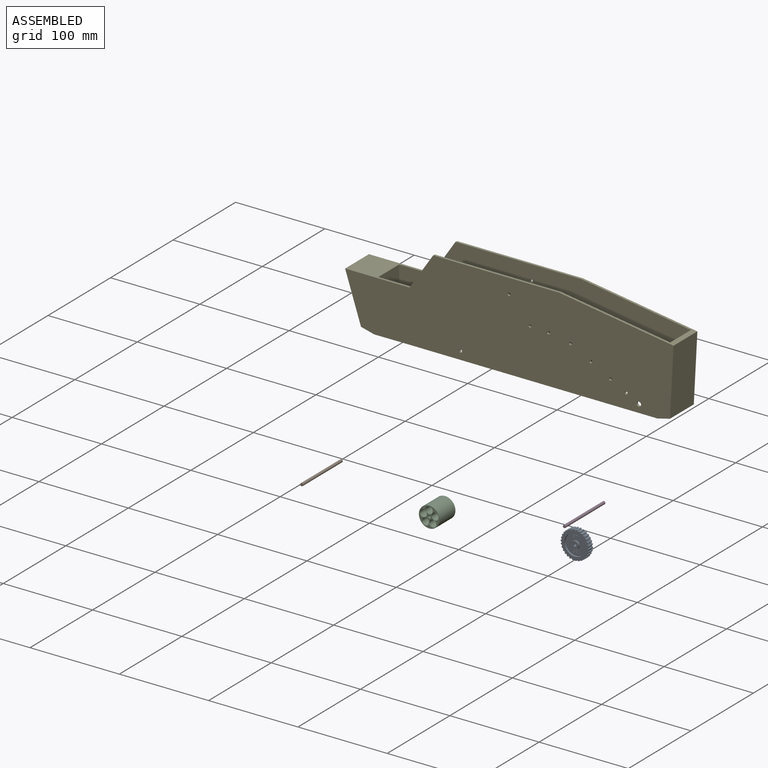
[diagram: assembled view]
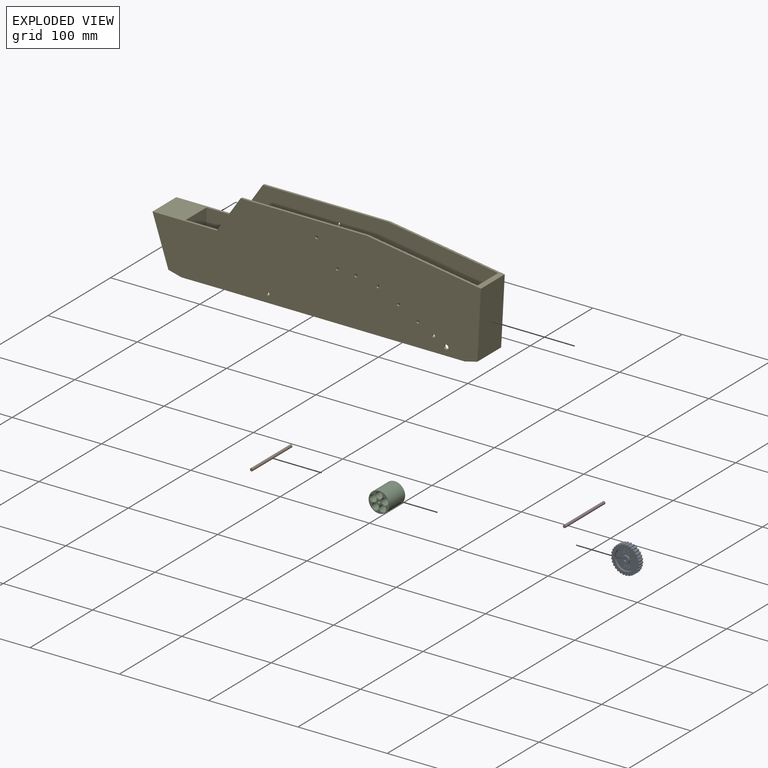
[diagram: exploded view]
GUIDED TOUR — MATED ASSEMBLY (Onshape document 996dfde3c2dcfd95ad4dc604, AutoMate assembly 996dfde3c2dcfd95ad4dc604_26764acc3bf8b6e6fdc7e207_e464e1e1b56f01ff1766349b_default)

This assembly has 5 components, labeled P0..P4 below (a component is one placed occurrence of a part; the same part can appear more than once), held together by 0 mates. A mate is a constraint between two components; its type names the relative motion it leaves free:
Axis/direction vectors are unit vectors and 'through' points are millimeter coordinates, both in the assembly's world frame.

MATES

ASSEMBLY ORDER
  1. P3 — the base component [order verified]
  2. P0 [order verified]
  3. P2 [order verified]
  4. P1 [order verified]
  5. P4 [order verified]
Order-tag legend:
  [order verified] — this step's position reverses a verified removal order: the component was checked to insert without passing through the ones already placed.

Of the 5 components, 3 carry the full construction recipe — the FeatureScript program that regenerates the part's solid from scratch; the rest are supplied as boundary geometry only.
Each toured component is shown spotlighted twice — in the assembled view, then in the exploded view, where a leader line traces a displaced component back to its assembled socket (saturated green if recipe-attached, orange if geometry-only; every other component desaturated gray) — followed by its recipe or geometry summary and the mates that hold it.
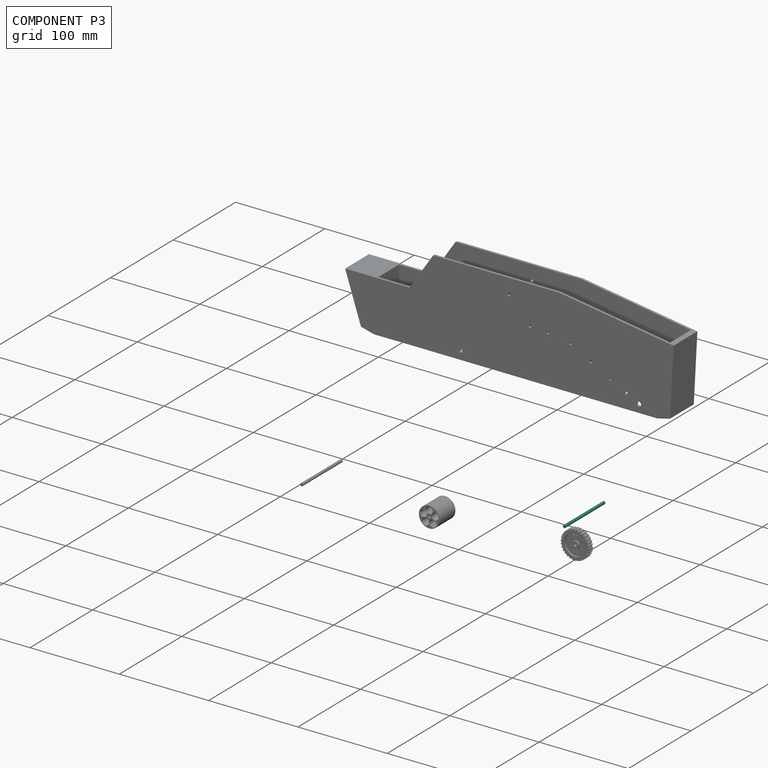
[diagram: component P3 — assembled]
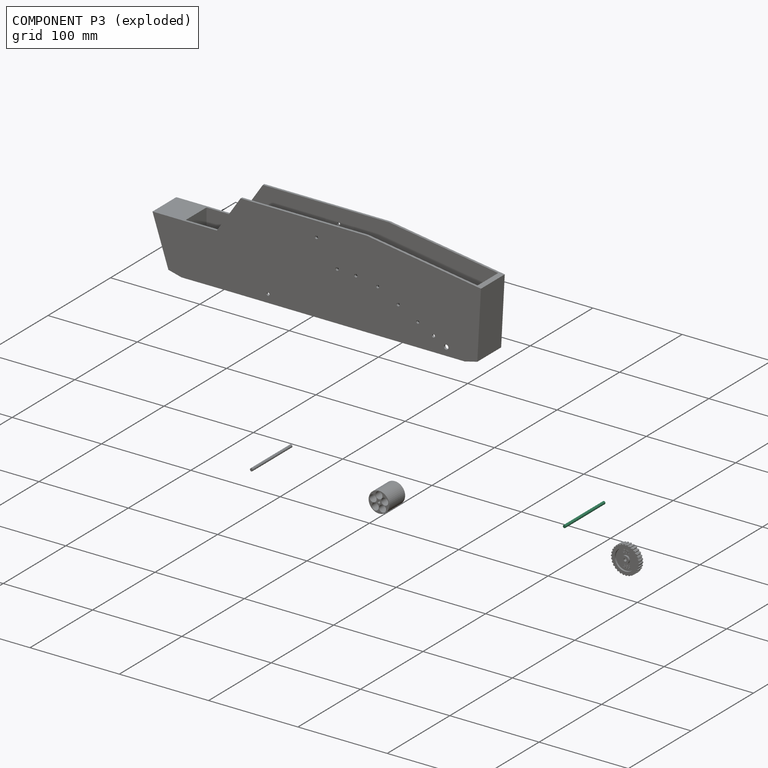
[diagram: component P3 — exploded]
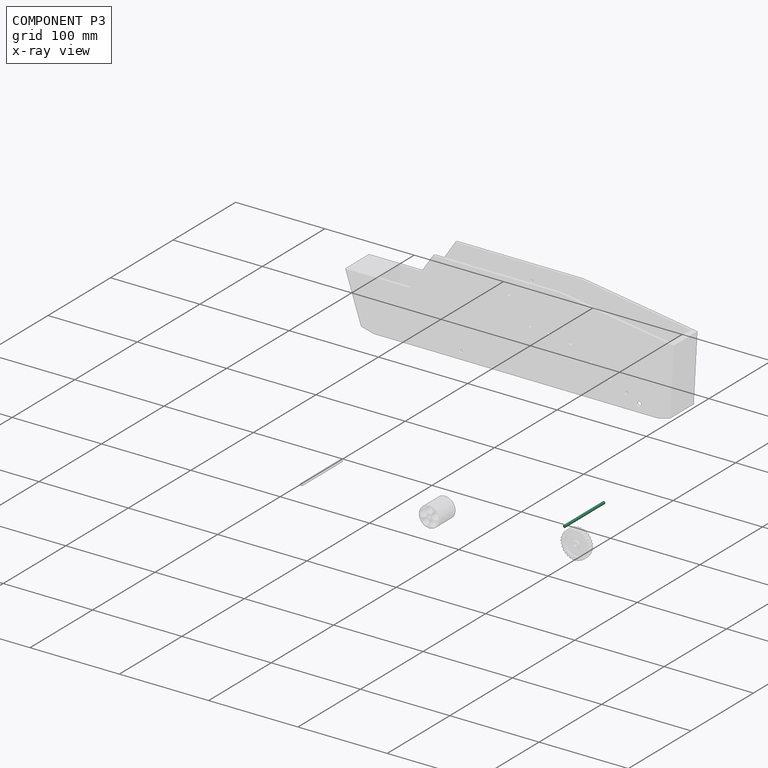
[diagram: component P3 — x-ray view]
COMPONENT P3 — same part as P1 (CADFS 00264422); its construction recipe is shown at P1.
Held by: no mates (free).
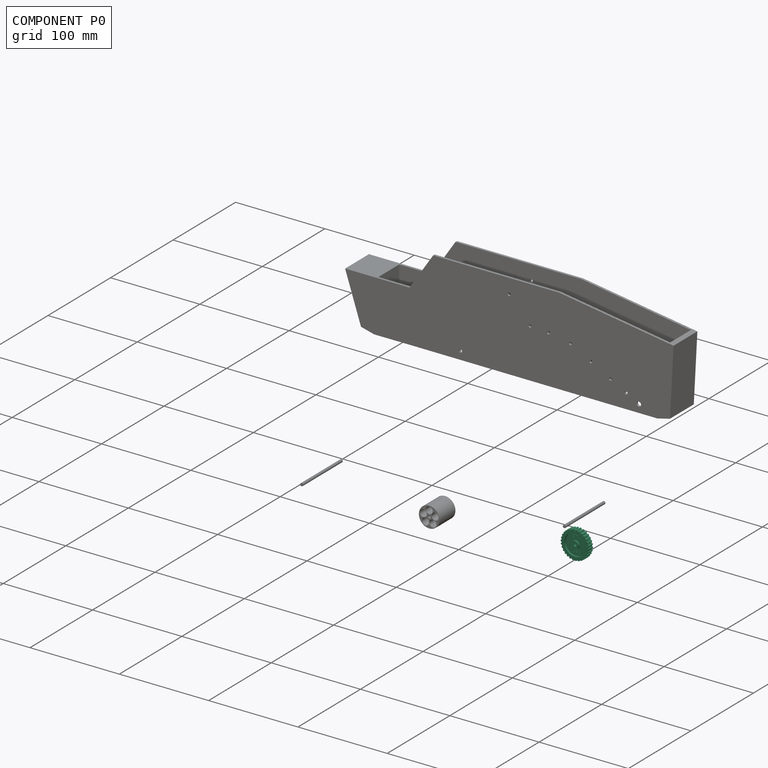
[diagram: component P0 — assembled]
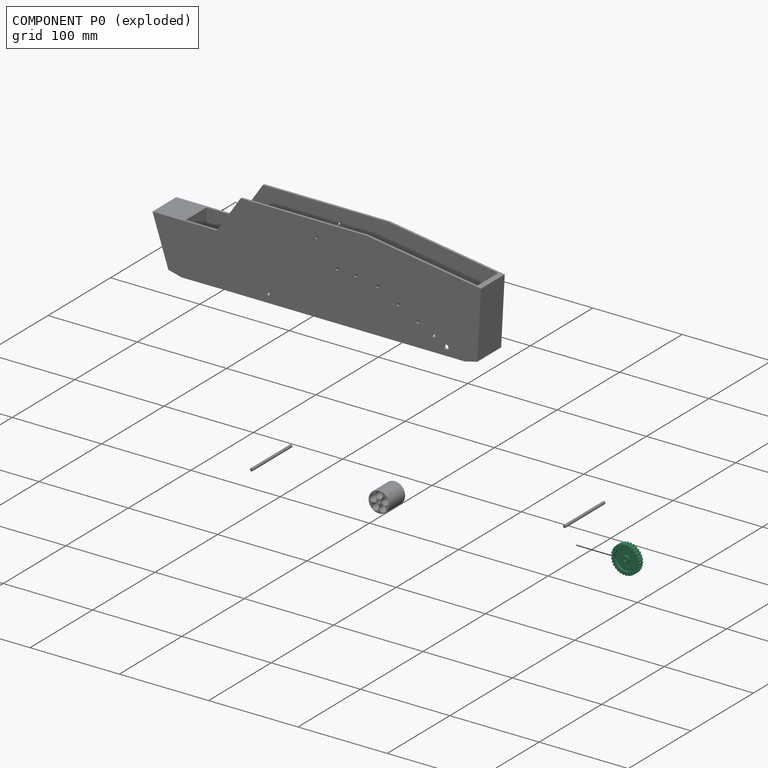
[diagram: component P0 — exploded]
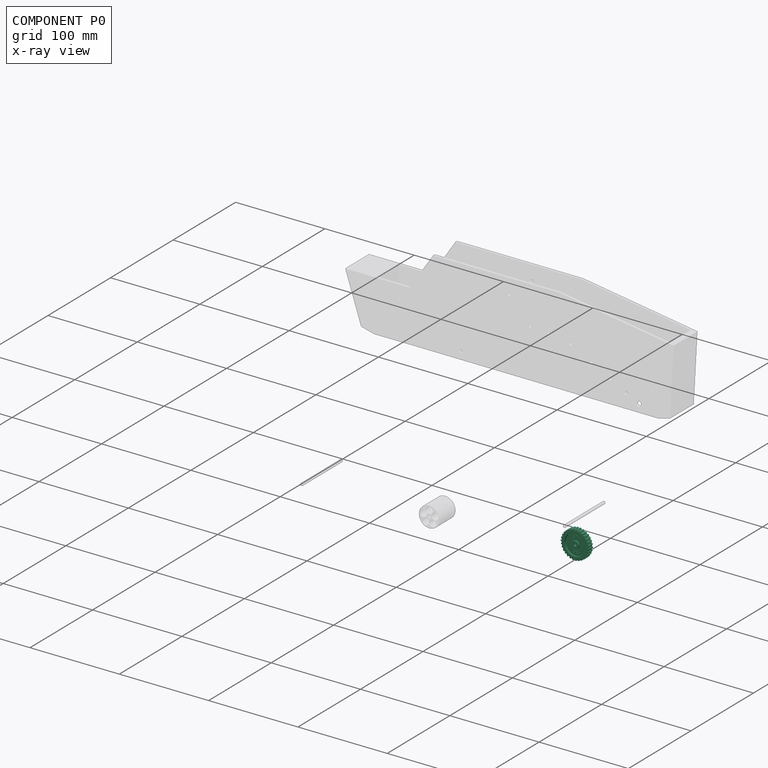
[diagram: component P0 — x-ray view]
COMPONENT P0 — recipe-attached (CADFS 00264423, mesh-verified: the recipe's output STEP matches this component's geometry to below the mesh-comparison resolution (tessellation chordal tolerance ~0.0678 mm)).
Held by: no mates (free).
Construction recipe (FeatureScript — the CAD program that rebuilds this solid; sketch coordinates are in the units given by the * unit suffixes, e.g. mm):

FeatureScript 1511;
import(path : "onshape/std/geometry.fs", version : "1511.0");
import(path : "onshape/std/common.fs", version : "1511.0");
const mm = millimeter;
const VERTEX = EntityType.VERTEX;
const EDGE = EntityType.EDGE;
const FACE = EntityType.FACE;
const BODY = EntityType.BODY;
function v(x, y){return vector(x, y);}
function OD(order){return orderDisambiguation(order);}
function OSD(set){return originalSetDisambiguation(set);}
function TD(topology){return topologyDisambiguation(topology);}
function TDD(query){return trueDependencyDisambiguation(query);}
function sQuery(a, b, c) {return sketchEntityQuery(a, b, c);}

annotation { "Feature Type Name" : "Feature", "Feature Type Description" : "" }
export const myFeature = defineFeature(function(context is Context, id is Id, definition is map)
    precondition{}
    {
        {
            var Q0;
            Q0=qCreatedBy(makeId("Front.planeOp"),FACE);
            var sketch = newSketch(context, id + "F0", { "sketchPlane" : qUnion([Q0])});
            skCircle(sketch, "E0", {"center": v(0, 0) * mm, "radius": 14.92 * mm});
            skCircle(sketch, "E1", {"center": v(0, 0) * mm, "radius": 1.59 * mm});
            skSolve(sketch);
        }
        {
            var Q0;
            Q0=qSketchRegion(id+"F0",true);
            extrude(context, id + "F1", {"entities" : qUnion([Q0]), "depth" : 6.6 * mm});
        }
        {
            var Q0;
            Q0=makeQuery(id+"F1.opExtrude","CAP_FACE",FACE,{"disambiguationData":[OSD([sQuery(id+"F0.wireOp",EDGE,"E0"),sQuery(id+"F0.wireOp",EDGE,"E1")])],"isStart":false});
            var sketch = newSketch(context, id + "F2", { "sketchPlane" : qUnion([Q0])});
            skCircle(sketch, "E2.0", {"center": v(0, 0) * mm, "radius": 11.62 * mm});
            skCircle(sketch, "E3", {"center": v(0, 0) * mm, "radius": 4.13 * mm});
            skSolve(sketch);
        }
        {
            var Q0;
            Q0=qSketchRegion(id+"F2",true);
            extrude(context, id + "F3", {"entities" : qUnion([Q0]), "operationType" : NewBodyOperationType.REMOVE, "oppositeDirection" : true, "depth" : 2.03 * mm});
        }
        {
            var Q0;
            Q0=makeQuery(id+"F1.opExtrude","CAP_FACE",FACE,{"disambiguationData":[OSD([sQuery(id+"F0.wireOp",EDGE,"E0"),sQuery(id+"F0.wireOp",EDGE,"E1")])],"isStart":true});
            var sketch = newSketch(context, id + "F4", { "sketchPlane" : qUnion([Q0])});
            skCircle(sketch, "E4.0", {"center": v(0, 0) * mm, "radius": 11.62 * mm});
            skCircle(sketch, "E5", {"center": v(0, 0) * mm, "radius": 4.13 * mm});
            skSolve(sketch);
        }
        {
            var Q0;
            Q0=qSketchRegion(id+"F4",true);
            extrude(context, id + "F5", {"entities" : qUnion([Q0]), "operationType" : NewBodyOperationType.REMOVE, "oppositeDirection" : true, "depth" : 2.03 * mm});
        }
        {
            var Q0;
            Q0=qCreatedBy(makeId("Front.planeOp"),FACE);
            var sketch = newSketch(context, id + "F6", { "sketchPlane" : qUnion([Q0])});
            skLineSegment(sketch, "E6", {"start": v(0, 0) * mm, "end": v(0, 18.01) * mm, "construction": true});
            skLineSegment(sketch, "E7", {"start": v(0, 0) * mm, "end": v(-3.72, 17.5) * mm, "construction": true});
            skLineSegment(sketch, "E8", {"start": v(0, 0) * mm, "end": v(-1.9, 18.03) * mm, "construction": true});
            skArc(sketch, "E9", {"start": v(-0.45, 15.8) * mm, "mid": v(-1.07, 15.78) * mm, "end": v(-1.68, 15.72) * mm});
            skLineSegment(sketch, "E10", {"start": v(0, 14.93) * mm, "end": v(-0.45, 15.8) * mm});
            skLineSegment(sketch, "E11", {"start": v(-1.68, 15.72) * mm, "end": v(-1.98, 14.7) * mm});
            skLineSegment(sketch, "E12", {"start": v(-1.98, 14.7) * mm, "end": v(0, 14.93) * mm});
            skLineSegment(sketch, "E13.1.0", {"start": v(-4.91, 15.03) * mm, "end": v(-5, 13.97) * mm});
            skArc(sketch, "E13.1.1", {"start": v(-3.73, 15.37) * mm, "mid": v(-4.32, 15.2) * mm, "end": v(-4.91, 15.03) * mm});
            skLineSegment(sketch, "E13.1.2", {"start": v(-3.1, 14.6) * mm, "end": v(-3.73, 15.37) * mm});
            skLineSegment(sketch, "E13.1.3", {"start": v(-5, 13.97) * mm, "end": v(-3.1, 14.6) * mm});
            skLineSegment(sketch, "E13.2.0", {"start": v(-7.93, 13.68) * mm, "end": v(-7.8, 12.62) * mm});
            skArc(sketch, "E13.2.1", {"start": v(-6.84, 14.25) * mm, "mid": v(-7.4, 13.98) * mm, "end": v(-7.93, 13.68) * mm});
            skLineSegment(sketch, "E13.2.2", {"start": v(-6.07, 13.64) * mm, "end": v(-6.84, 14.25) * mm});
            skLineSegment(sketch, "E13.2.3", {"start": v(-7.8, 12.62) * mm, "end": v(-6.07, 13.64) * mm});
            skLineSegment(sketch, "E13.3.0", {"start": v(-10.6, 11.73) * mm, "end": v(-10.25, 10.73) * mm});
            skArc(sketch, "E13.3.1", {"start": v(-9.66, 12.52) * mm, "mid": v(-10.14, 12.14) * mm, "end": v(-10.6, 11.73) * mm});
            skLineSegment(sketch, "E13.3.2", {"start": v(-8.77, 12.08) * mm, "end": v(-9.66, 12.52) * mm});
            skLineSegment(sketch, "E13.3.3", {"start": v(-10.25, 10.73) * mm, "end": v(-8.77, 12.08) * mm});
            skLineSegment(sketch, "E13.4.0", {"start": v(-12.8, 9.27) * mm, "end": v(-12.25, 8.36) * mm});
            skArc(sketch, "E13.4.1", {"start": v(-12.05, 10.24) * mm, "mid": v(-12.44, 9.76) * mm, "end": v(-12.8, 9.27) * mm});
            skLineSegment(sketch, "E13.4.2", {"start": v(-11.1, 9.99) * mm, "end": v(-12.05, 10.24) * mm});
            skLineSegment(sketch, "E13.4.3", {"start": v(-12.25, 8.36) * mm, "end": v(-11.1, 9.99) * mm});
            skLineSegment(sketch, "E13.5.0", {"start": v(-14.45, 6.4) * mm, "end": v(-13.72, 5.63) * mm});
            skArc(sketch, "E13.5.1", {"start": v(-13.91, 7.5) * mm, "mid": v(-14.2, 6.96) * mm, "end": v(-14.45, 6.4) * mm});
            skLineSegment(sketch, "E13.5.2", {"start": v(-12.93, 7.46) * mm, "end": v(-13.91, 7.5) * mm});
            skLineSegment(sketch, "E13.5.3", {"start": v(-13.72, 5.63) * mm, "end": v(-12.93, 7.46) * mm});
            skLineSegment(sketch, "E13.6.0", {"start": v(-15.47, 3.26) * mm, "end": v(-14.6, 2.65) * mm});
            skArc(sketch, "E13.6.1", {"start": v(-15.17, 4.45) * mm, "mid": v(-15.33, 3.86) * mm, "end": v(-15.47, 3.26) * mm});
            skLineSegment(sketch, "E13.6.2", {"start": v(-14.2, 4.61) * mm, "end": v(-15.17, 4.45) * mm});
            skLineSegment(sketch, "E13.6.3", {"start": v(-14.6, 2.65) * mm, "end": v(-14.2, 4.61) * mm});
            skLineSegment(sketch, "E13.7.0", {"start": v(-15.81, -0.03) * mm, "end": v(-14.83, -0.44) * mm});
            skArc(sketch, "E13.7.1", {"start": v(-15.77, 1.2) * mm, "mid": v(-15.8, 0.59) * mm, "end": v(-15.81, -0.03) * mm});
            skLineSegment(sketch, "E13.7.2", {"start": v(-14.84, 1.56) * mm, "end": v(-15.77, 1.2) * mm});
            skLineSegment(sketch, "E13.7.3", {"start": v(-14.83, -0.44) * mm, "end": v(-14.84, 1.56) * mm});
            skLineSegment(sketch, "E13.8.0", {"start": v(-15.46, -3.31) * mm, "end": v(-14.41, -3.51) * mm});
            skArc(sketch, "E13.8.1", {"start": v(-15.67, -2.1) * mm, "mid": v(-15.58, -2.7) * mm, "end": v(-15.46, -3.31) * mm});
            skLineSegment(sketch, "E13.8.2", {"start": v(-14.84, -1.56) * mm, "end": v(-15.67, -2.1) * mm});
            skLineSegment(sketch, "E13.8.3", {"start": v(-14.41, -3.51) * mm, "end": v(-14.84, -1.56) * mm});
            skLineSegment(sketch, "E13.9.0", {"start": v(-14.43, -6.45) * mm, "end": v(-13.37, -6.43) * mm});
            skArc(sketch, "E13.9.1", {"start": v(-14.9, -5.32) * mm, "mid": v(-14.67, -5.89) * mm, "end": v(-14.43, -6.45) * mm});
            skLineSegment(sketch, "E13.9.2", {"start": v(-14.2, -4.61) * mm, "end": v(-14.9, -5.32) * mm});
            skLineSegment(sketch, "E13.9.3", {"start": v(-13.37, -6.43) * mm, "end": v(-14.2, -4.61) * mm});
            skLineSegment(sketch, "E13.10.0", {"start": v(-12.78, -9.31) * mm, "end": v(-11.74, -9.07) * mm});
            skArc(sketch, "E13.10.1", {"start": v(-13.46, -8.3) * mm, "mid": v(-13.13, -8.81) * mm, "end": v(-12.78, -9.31) * mm});
            skLineSegment(sketch, "E13.10.2", {"start": v(-12.93, -7.46) * mm, "end": v(-13.46, -8.3) * mm});
            skLineSegment(sketch, "E13.10.3", {"start": v(-11.74, -9.07) * mm, "end": v(-12.93, -7.46) * mm});
            skLineSegment(sketch, "E13.11.0", {"start": v(-10.56, -11.77) * mm, "end": v(-9.6, -11.31) * mm});
            skArc(sketch, "E13.11.1", {"start": v(-11.44, -10.91) * mm, "mid": v(-11, -11.35) * mm, "end": v(-10.56, -11.77) * mm});
            skLineSegment(sketch, "E13.11.2", {"start": v(-11.1, -9.99) * mm, "end": v(-11.44, -10.91) * mm});
            skLineSegment(sketch, "E13.11.3", {"start": v(-9.6, -11.31) * mm, "end": v(-11.1, -9.99) * mm});
            skLineSegment(sketch, "E13.12.0", {"start": v(-7.88, -13.7) * mm, "end": v(-7.03, -13.06) * mm});
            skArc(sketch, "E13.12.1", {"start": v(-8.92, -13.05) * mm, "mid": v(-8.4, -13.39) * mm, "end": v(-7.88, -13.7) * mm});
            skLineSegment(sketch, "E13.12.2", {"start": v(-8.77, -12.08) * mm, "end": v(-8.92, -13.05) * mm});
            skLineSegment(sketch, "E13.12.3", {"start": v(-7.03, -13.06) * mm, "end": v(-8.77, -12.08) * mm});
            skLineSegment(sketch, "E13.13.0", {"start": v(-4.86, -15.05) * mm, "end": v(-4.17, -14.24) * mm});
            skArc(sketch, "E13.13.1", {"start": v(-6.01, -14.62) * mm, "mid": v(-5.44, -14.85) * mm, "end": v(-4.86, -15.05) * mm});
            skLineSegment(sketch, "E13.13.2", {"start": v(-6.07, -13.64) * mm, "end": v(-6.01, -14.62) * mm});
            skLineSegment(sketch, "E13.13.3", {"start": v(-4.17, -14.24) * mm, "end": v(-6.07, -13.64) * mm});
            skLineSegment(sketch, "E13.14.0", {"start": v(-1.63, -15.73) * mm, "end": v(-1.11, -14.8) * mm});
            skArc(sketch, "E13.14.1", {"start": v(-2.84, -15.55) * mm, "mid": v(-2.24, -15.65) * mm, "end": v(-1.63, -15.73) * mm});
            skLineSegment(sketch, "E13.14.2", {"start": v(-3.1, -14.6) * mm, "end": v(-2.84, -15.55) * mm});
            skLineSegment(sketch, "E13.14.3", {"start": v(-1.11, -14.8) * mm, "end": v(-3.1, -14.6) * mm});
            skLineSegment(sketch, "E13.15.0", {"start": v(1.68, -15.72) * mm, "end": v(1.98, -14.7) * mm});
            skArc(sketch, "E13.15.1", {"start": v(0.45, -15.8) * mm, "mid": v(1.07, -15.78) * mm, "end": v(1.68, -15.72) * mm});
            skLineSegment(sketch, "E13.15.2", {"start": v(0, -14.93) * mm, "end": v(0.45, -15.8) * mm});
            skLineSegment(sketch, "E13.15.3", {"start": v(1.98, -14.7) * mm, "end": v(0, -14.93) * mm});
            skLineSegment(sketch, "E13.16.0", {"start": v(4.91, -15.03) * mm, "end": v(5, -13.97) * mm});
            skArc(sketch, "E13.16.1", {"start": v(3.73, -15.37) * mm, "mid": v(4.32, -15.2) * mm, "end": v(4.91, -15.03) * mm});
            skLineSegment(sketch, "E13.16.2", {"start": v(3.1, -14.6) * mm, "end": v(3.73, -15.37) * mm});
            skLineSegment(sketch, "E13.16.3", {"start": v(5, -13.97) * mm, "end": v(3.1, -14.6) * mm});
            skLineSegment(sketch, "E13.17.0", {"start": v(7.93, -13.68) * mm, "end": v(7.8, -12.62) * mm});
            skArc(sketch, "E13.17.1", {"start": v(6.84, -14.25) * mm, "mid": v(7.4, -13.98) * mm, "end": v(7.93, -13.68) * mm});
            skLineSegment(sketch, "E13.17.2", {"start": v(6.07, -13.64) * mm, "end": v(6.84, -14.25) * mm});
            skLineSegment(sketch, "E13.17.3", {"start": v(7.8, -12.62) * mm, "end": v(6.07, -13.64) * mm});
            skLineSegment(sketch, "E13.18.0", {"start": v(10.6, -11.73) * mm, "end": v(10.25, -10.73) * mm});
            skArc(sketch, "E13.18.1", {"start": v(9.66, -12.52) * mm, "mid": v(10.14, -12.14) * mm, "end": v(10.6, -11.73) * mm});
            skLineSegment(sketch, "E13.18.2", {"start": v(8.77, -12.08) * mm, "end": v(9.66, -12.52) * mm});
            skLineSegment(sketch, "E13.18.3", {"start": v(10.25, -10.73) * mm, "end": v(8.77, -12.08) * mm});
            skLineSegment(sketch, "E13.19.0", {"start": v(12.8, -9.27) * mm, "end": v(12.25, -8.36) * mm});
            skArc(sketch, "E13.19.1", {"start": v(12.05, -10.24) * mm, "mid": v(12.44, -9.76) * mm, "end": v(12.8, -9.27) * mm});
            skLineSegment(sketch, "E13.19.2", {"start": v(11.1, -9.99) * mm, "end": v(12.05, -10.24) * mm});
            skLineSegment(sketch, "E13.19.3", {"start": v(12.25, -8.36) * mm, "end": v(11.1, -9.99) * mm});
            skLineSegment(sketch, "E13.20.0", {"start": v(14.45, -6.4) * mm, "end": v(13.72, -5.63) * mm});
            skArc(sketch, "E13.20.1", {"start": v(13.91, -7.5) * mm, "mid": v(14.2, -6.96) * mm, "end": v(14.45, -6.4) * mm});
            skLineSegment(sketch, "E13.20.2", {"start": v(12.93, -7.46) * mm, "end": v(13.91, -7.5) * mm});
            skLineSegment(sketch, "E13.20.3", {"start": v(13.72, -5.63) * mm, "end": v(12.93, -7.46) * mm});
            skLineSegment(sketch, "E13.21.0", {"start": v(15.47, -3.26) * mm, "end": v(14.6, -2.65) * mm});
            skArc(sketch, "E13.21.1", {"start": v(15.17, -4.45) * mm, "mid": v(15.33, -3.86) * mm, "end": v(15.47, -3.26) * mm});
            skLineSegment(sketch, "E13.21.2", {"start": v(14.2, -4.61) * mm, "end": v(15.17, -4.45) * mm});
            skLineSegment(sketch, "E13.21.3", {"start": v(14.6, -2.65) * mm, "end": v(14.2, -4.61) * mm});
            skLineSegment(sketch, "E13.22.0", {"start": v(15.81, 0.03) * mm, "end": v(14.83, 0.44) * mm});
            skArc(sketch, "E13.22.1", {"start": v(15.77, -1.2) * mm, "mid": v(15.8, -0.59) * mm, "end": v(15.81, 0.03) * mm});
            skLineSegment(sketch, "E13.22.2", {"start": v(14.84, -1.56) * mm, "end": v(15.77, -1.2) * mm});
            skLineSegment(sketch, "E13.22.3", {"start": v(14.83, 0.44) * mm, "end": v(14.84, -1.56) * mm});
            skLineSegment(sketch, "E13.23.0", {"start": v(15.46, 3.31) * mm, "end": v(14.41, 3.51) * mm});
            skArc(sketch, "E13.23.1", {"start": v(15.67, 2.1) * mm, "mid": v(15.58, 2.7) * mm, "end": v(15.46, 3.31) * mm});
            skLineSegment(sketch, "E13.23.2", {"start": v(14.84, 1.56) * mm, "end": v(15.67, 2.1) * mm});
            skLineSegment(sketch, "E13.23.3", {"start": v(14.41, 3.51) * mm, "end": v(14.84, 1.56) * mm});
            skLineSegment(sketch, "E13.24.0", {"start": v(14.43, 6.45) * mm, "end": v(13.37, 6.43) * mm});
            skArc(sketch, "E13.24.1", {"start": v(14.9, 5.32) * mm, "mid": v(14.67, 5.89) * mm, "end": v(14.43, 6.45) * mm});
            skLineSegment(sketch, "E13.24.2", {"start": v(14.2, 4.61) * mm, "end": v(14.9, 5.32) * mm});
            skLineSegment(sketch, "E13.24.3", {"start": v(13.37, 6.43) * mm, "end": v(14.2, 4.61) * mm});
            skLineSegment(sketch, "E13.25.0", {"start": v(12.78, 9.31) * mm, "end": v(11.74, 9.07) * mm});
            skArc(sketch, "E13.25.1", {"start": v(13.46, 8.3) * mm, "mid": v(13.13, 8.81) * mm, "end": v(12.78, 9.31) * mm});
            skLineSegment(sketch, "E13.25.2", {"start": v(12.93, 7.46) * mm, "end": v(13.46, 8.3) * mm});
            skLineSegment(sketch, "E13.25.3", {"start": v(11.74, 9.07) * mm, "end": v(12.93, 7.46) * mm});
            skLineSegment(sketch, "E13.26.0", {"start": v(10.56, 11.77) * mm, "end": v(9.6, 11.31) * mm});
            skArc(sketch, "E13.26.1", {"start": v(11.44, 10.91) * mm, "mid": v(11, 11.35) * mm, "end": v(10.56, 11.77) * mm});
            skLineSegment(sketch, "E13.26.2", {"start": v(11.1, 9.99) * mm, "end": v(11.44, 10.91) * mm});
            skLineSegment(sketch, "E13.26.3", {"start": v(9.6, 11.31) * mm, "end": v(11.1, 9.99) * mm});
            skLineSegment(sketch, "E13.27.0", {"start": v(7.88, 13.7) * mm, "end": v(7.03, 13.06) * mm});
            skArc(sketch, "E13.27.1", {"start": v(8.92, 13.05) * mm, "mid": v(8.4, 13.39) * mm, "end": v(7.88, 13.7) * mm});
            skLineSegment(sketch, "E13.27.2", {"start": v(8.77, 12.08) * mm, "end": v(8.92, 13.05) * mm});
            skLineSegment(sketch, "E13.27.3", {"start": v(7.03, 13.06) * mm, "end": v(8.77, 12.08) * mm});
            skLineSegment(sketch, "E13.28.0", {"start": v(4.86, 15.05) * mm, "end": v(4.17, 14.24) * mm});
            skArc(sketch, "E13.28.1", {"start": v(6.01, 14.62) * mm, "mid": v(5.44, 14.85) * mm, "end": v(4.86, 15.05) * mm});
            skLineSegment(sketch, "E13.28.2", {"start": v(6.07, 13.64) * mm, "end": v(6.01, 14.62) * mm});
            skLineSegment(sketch, "E13.28.3", {"start": v(4.17, 14.24) * mm, "end": v(6.07, 13.64) * mm});
            skLineSegment(sketch, "E13.29.0", {"start": v(1.63, 15.73) * mm, "end": v(1.11, 14.8) * mm});
            skArc(sketch, "E13.29.1", {"start": v(2.84, 15.55) * mm, "mid": v(2.24, 15.65) * mm, "end": v(1.63, 15.73) * mm});
            skLineSegment(sketch, "E13.29.2", {"start": v(3.1, 14.6) * mm, "end": v(2.84, 15.55) * mm});
            skLineSegment(sketch, "E13.29.3", {"start": v(1.11, 14.8) * mm, "end": v(3.1, 14.6) * mm});
            skSolve(sketch);
        }
        {
            var Q0;
            Q0=qSketchRegion(id+"F6",true);
            var Q1;
            {var subQ0=sQuery(id+"F0.wireOp",EDGE,"E0");Q1=makeQuery(id+"F3.boolean.opBoolean","SPLIT",FACE,{"disambiguationData":[TD([makeQuery(id+"F1.opExtrude","SWEPT_FACE",FACE,{"disambiguationData":[OSD([subQ0])]})])],"derivedFrom":makeQuery(id+"F1.opExtrude","CAP_FACE",FACE,{"disambiguationData":[OSD([subQ0,sQuery(id+"F0.wireOp",EDGE,"E1")])],"isStart":false})});}
            extrude(context, id + "F7", {"entities" : qUnion([Q0]), "operationType" : NewBodyOperationType.ADD, "endBound" : BoundingType.UP_TO_SURFACE, "endBoundEntityFace" : qUnion([Q1]), "depth" : 25.4 * mm});
        }
        {
            var Q0;
            Q0=makeQuery(id+"F3.boolean.opBoolean","COPY",FACE,{"derivedFrom":makeQuery(id+"F3.opExtrude","CAP_FACE",FACE,{"disambiguationData":[OSD([sQuery(id+"F2.wireOp",EDGE,"E2.0"),sQuery(id+"F2.wireOp",EDGE,"E3")])],"isStart":false})});
            var sketch = newSketch(context, id + "F8", { "sketchPlane" : qUnion([Q0])});
            skText(sketch, "E14", { "text": "30t", "fontName": "OpenSans-Regular.ttf"});
            skText(sketch, "E15", { "text": ".586", "fontName": "OpenSans-Regular.ttf"});
            const initialGuessF8  = {"E14": [-0.00347, 0.00618, 1, 0, 0.00331], "E15": [-0.0039, -0.00869, 1, 0, 0.003]};
            skSetInitialGuess(sketch, initialGuessF8);
            skSolve(sketch);
        }
        {
            var Q0;
            Q0=qSketchRegion(id+"F8",true);
            extrude(context, id + "F9", {"entities" : qUnion([Q0]), "operationType" : NewBodyOperationType.ADD, "depth" : 0.5 * mm});
        }
    });
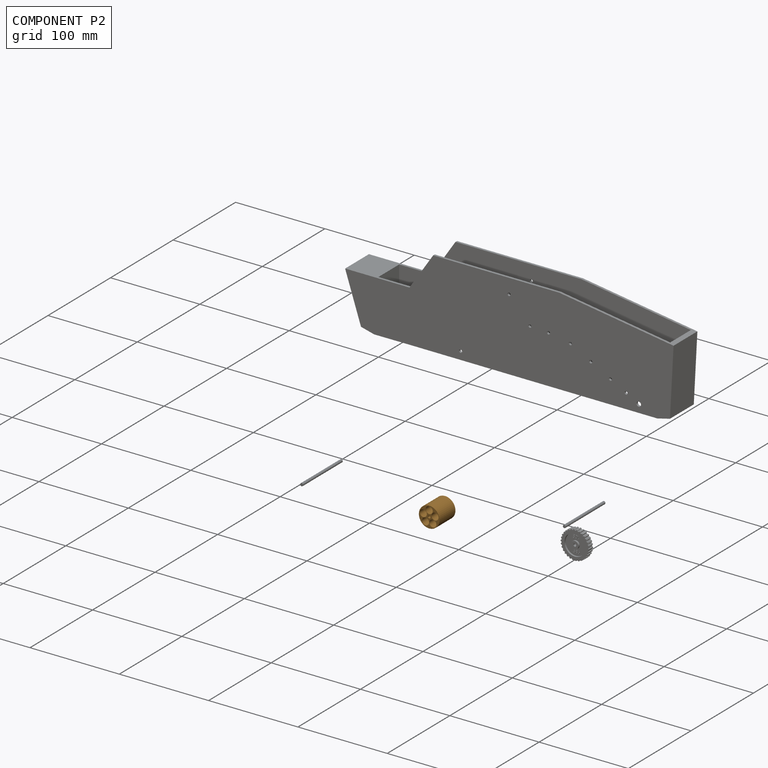
[diagram: component P2 — assembled]
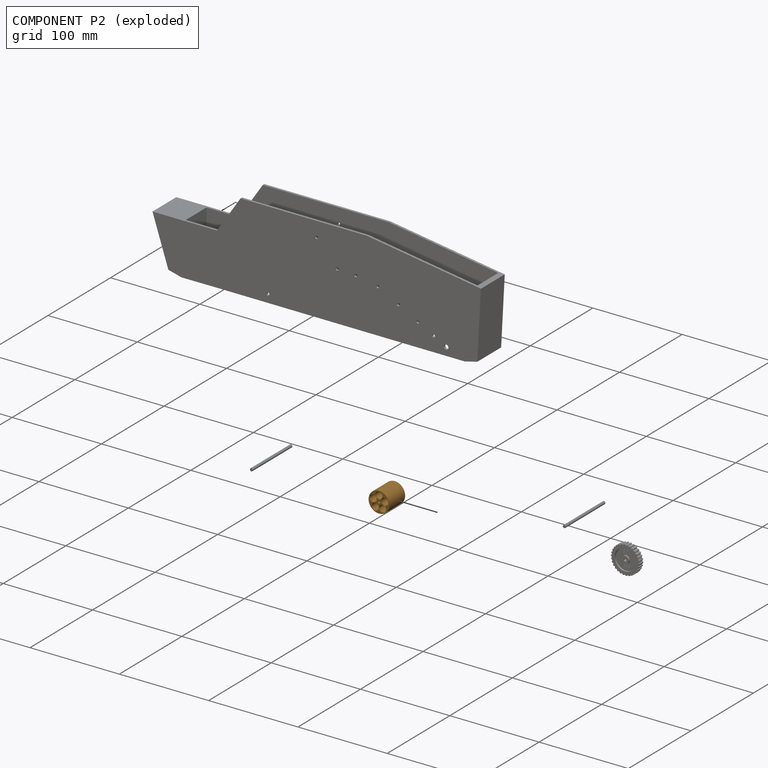
[diagram: component P2 — exploded]
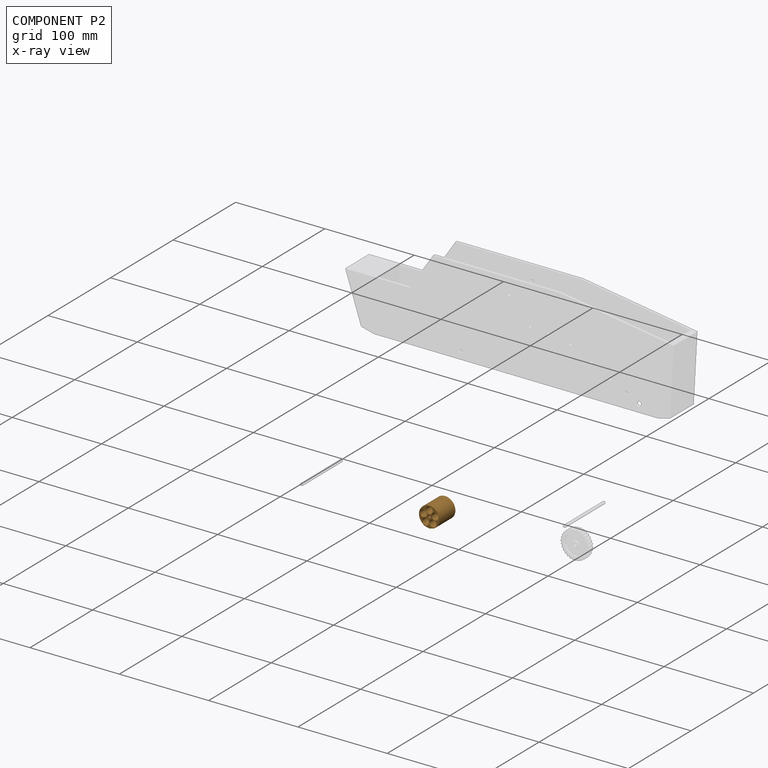
[diagram: component P2 — x-ray view]
COMPONENT P2 — geometry summary (no construction recipe available for this part):
  bounding box: 25.4 x 23.2 x 23.2 mm
  B-rep topology: 1 solid, 9 faces, 42 edges
  volume: 4405 mm^3 (32% of its bounding box)
  symmetry: 2-fold rotationally symmetric about the z axis; mirror-symmetric across its x mid-plane, y mid-plane
Held by: no mates (free).
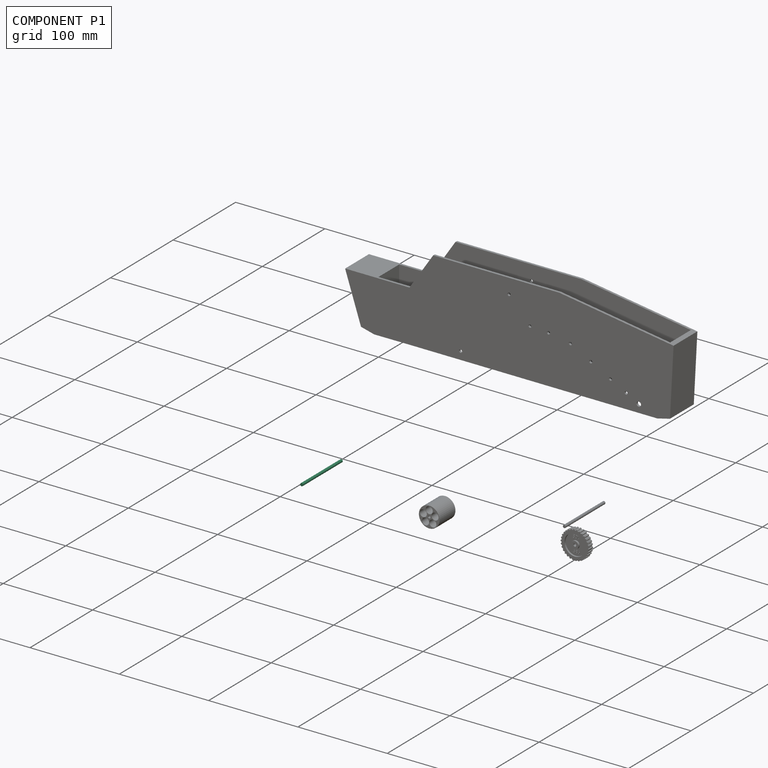
[diagram: component P1 — assembled]
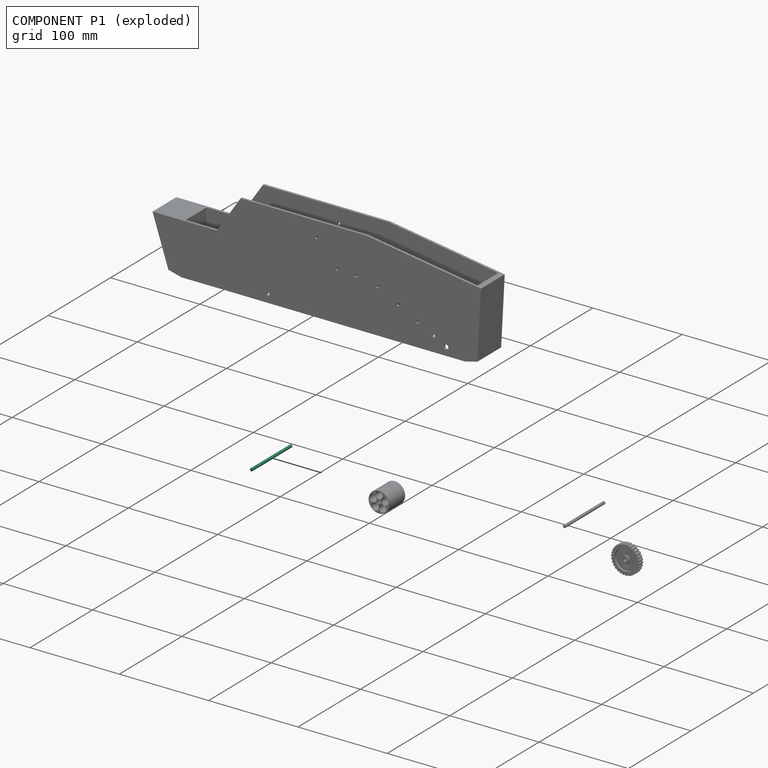
[diagram: component P1 — exploded]
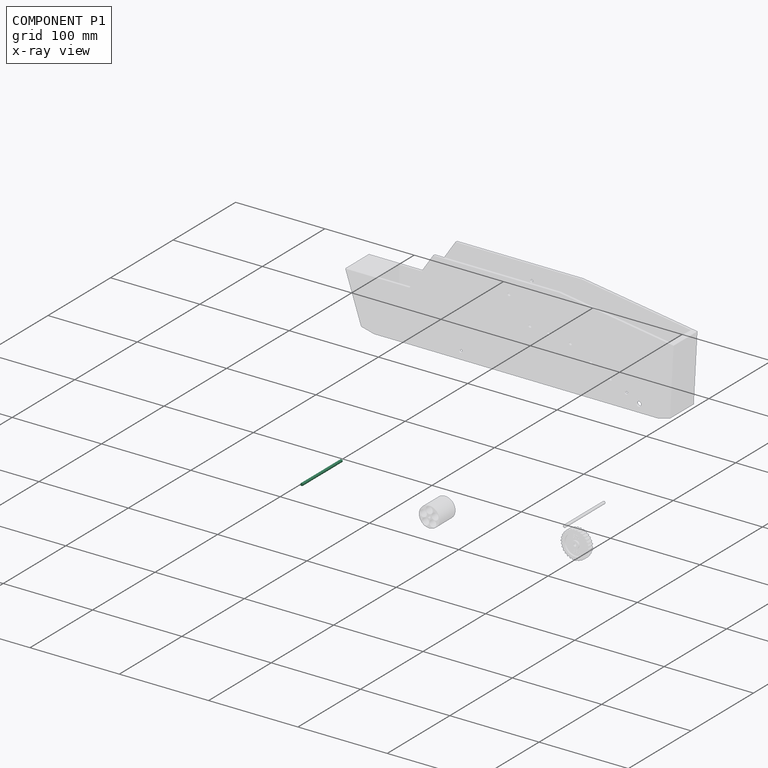
[diagram: component P1 — x-ray view]
COMPONENT P1 — recipe-attached (CADFS 00264422, mesh-verified: the recipe's output STEP matches this component's geometry to below the mesh-comparison resolution (tessellation chordal tolerance ~0.0955 mm)).
Held by: no mates (free).
Construction recipe (FeatureScript — the CAD program that rebuilds this solid; sketch coordinates are in the units given by the * unit suffixes, e.g. mm):

FeatureScript 1511;
import(path : "onshape/std/geometry.fs", version : "1511.0");
import(path : "onshape/std/common.fs", version : "1511.0");
const mm = millimeter;
const VERTEX = EntityType.VERTEX;
const EDGE = EntityType.EDGE;
const FACE = EntityType.FACE;
const BODY = EntityType.BODY;
function v(x, y){return vector(x, y);}
function OD(order){return orderDisambiguation(order);}
function OSD(set){return originalSetDisambiguation(set);}
function TD(topology){return topologyDisambiguation(topology);}
function TDD(query){return trueDependencyDisambiguation(query);}
function sQuery(a, b, c) {return sketchEntityQuery(a, b, c);}

annotation { "Feature Type Name" : "Feature", "Feature Type Description" : "" }
export const myFeature = defineFeature(function(context is Context, id is Id, definition is map)
    precondition{}
    {
        {
            var Q0;
            Q0=qCreatedBy(makeId("Front.planeOp"),FACE);
            var sketch = newSketch(context, id + "F0", { "sketchPlane" : qUnion([Q0])});
            skCircle(sketch, "E0", {"center": v(0, 0) * mm, "radius": 1.59 * mm});
            skSolve(sketch);
        }
        {
            var Q0;
            Q0=qSketchRegion(id+"F0",true);
            extrude(context, id + "F1", {"entities" : qUnion([Q0]), "depth" : 63.5 * mm});
        }
    });
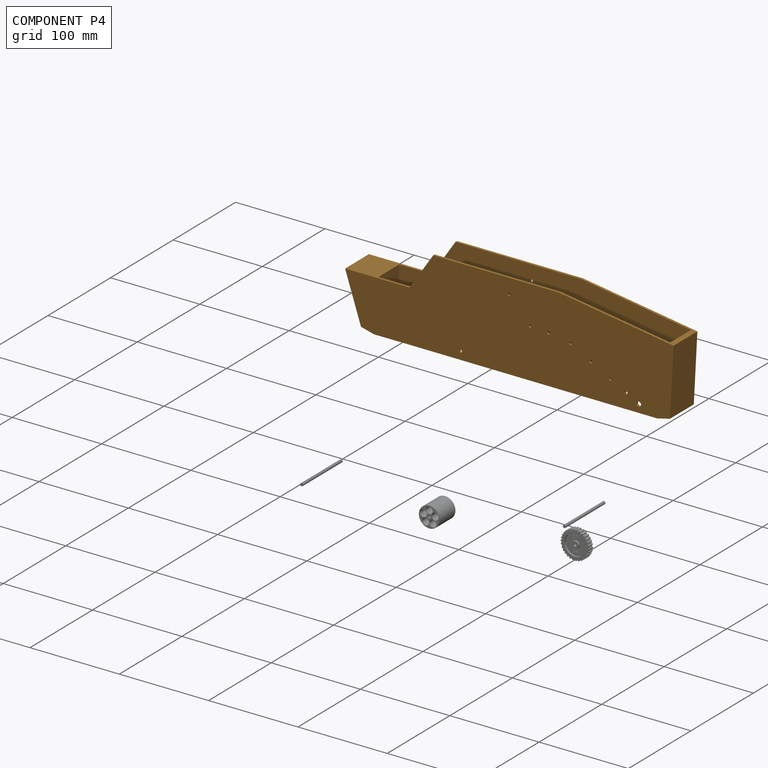
[diagram: component P4 — assembled]
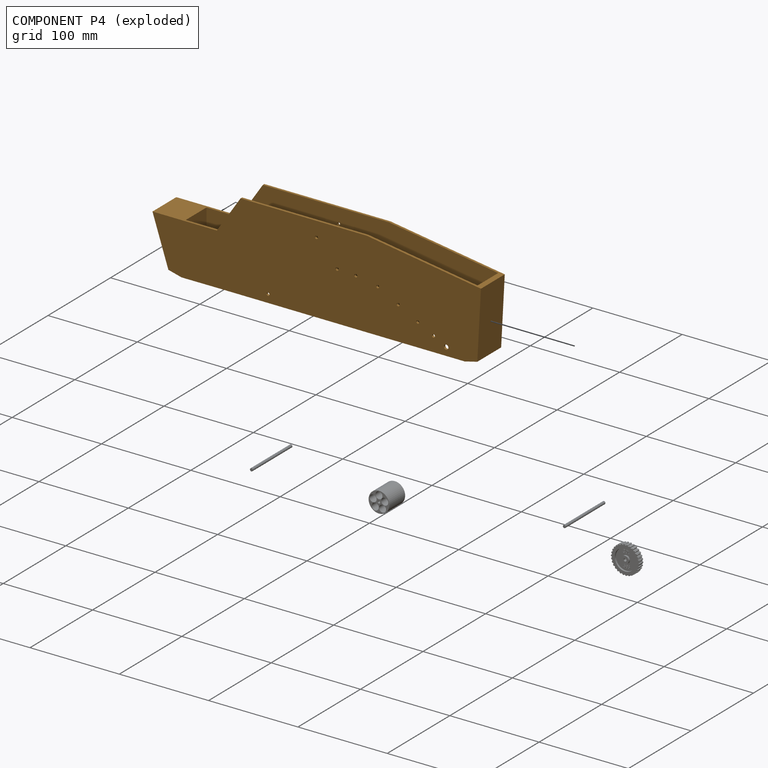
[diagram: component P4 — exploded]
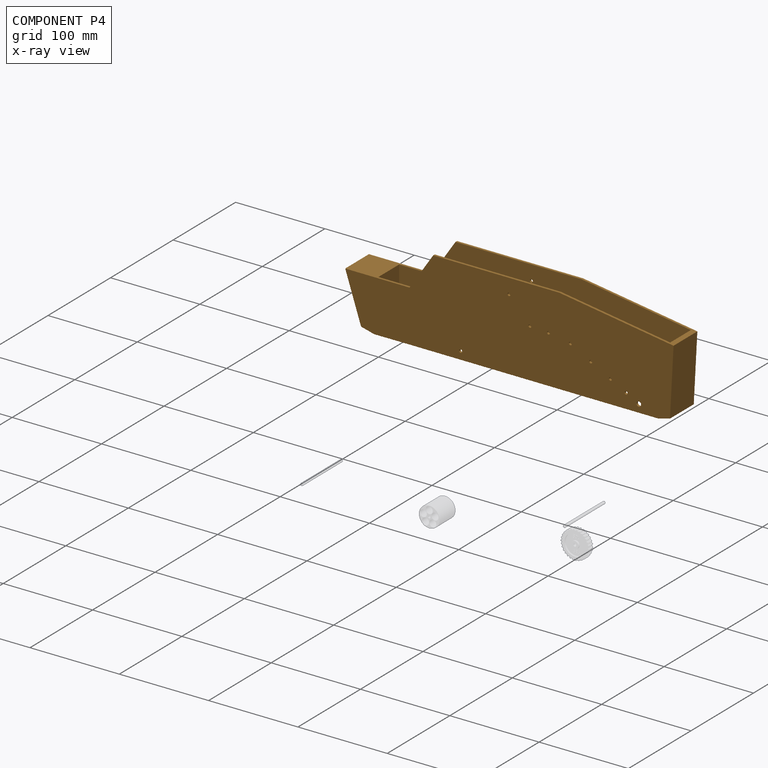
[diagram: component P4 — x-ray view]
COMPONENT P4 — geometry summary (no construction recipe available for this part):
  bounding box: 367.8 x 97.9 x 38.1 mm
  B-rep topology: 1 solid, 37 faces, 240 edges
  volume: 210010 mm^3 (15% of its bounding box)
  symmetry: mirror-symmetric across its y mid-plane
Held by: no mates (free).
PROVENANCE & LICENSES
Assembly (occurrences, transforms, mates, per-part STEP geometry): AutoMate dataset, Zenodo record 7776208, CC0.
Construction recipes: CADFS (HuggingFace VladPyatov/CADFS, CC-BY-4.0, layered over the ABC dataset), FeatureScript reconstruction programs keyed by ABC model id.
Join: ABC meta listings map ABC model id -> Onshape documentId; within a shared document, parts are matched by geometric signature (bounding-box dims + volume at 0.1% relative tolerance, exact B-rep face/solid counts).
Verification: 3 of this assembly's 5 components carry a recipe attachment, and every attachment is mesh-verified: the CADFS STEP and the AutoMate member STEP were compared as meshes in their shared local frame (symmetric sampled-point-to-mesh distance); worst across the 3 attachments: below the mesh-comparison resolution (tessellation chordal tolerance ~0.0955 mm) on a 64 mm part.
Renders: orthographic iso camera (az 35 / el 25); the floor grid conveys scale (grid pitch printed in each image; no ruler). In the exploded view each component is displaced by its stored offset vector: the offsets alone carry the explosion direction (mate normal/axis signs are not orientation cues and do not encode it), and separation distances are assigned per mate-chain, not proportionally to assembly-order depth.
